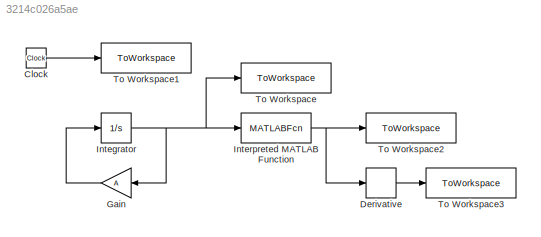
MODEL slx_3214c026a5ae
KIND model
CONFIG AbsTol = auto
CONFIG EnableMultiTasking = on
CONFIG FixedStep = 0.01
CONFIG MaxStep = auto
CONFIG MinStep = auto
CONFIG RelTol = 1e-3
CONFIG SampleTimeConstraint = Unconstrained
CONFIG Solver = ode4
CONFIG SolverName = ode4
CONFIG StartTime = 0.0
CONFIG StopTime = 4
BLOCK [Clock] Clock
BLOCK [Derivative] Derivative
BLOCK [Gain] Gain
  Gain = A
  Multiplication = Matrix(K*u)
BLOCK [Integrator] Integrator
  InitialCondition = x0
  Ports = [1, 1]
BLOCK [MATLABFcn] Interpreted MATLAB Function
  MATLABFcn = P(1,1)*u(1)^2 + 2*P(1,2)*u(1)*u(2) + P(2,2)*u(2)^2
  Ports = [1, 1]
BLOCK [ToWorkspace] To Workspace
  FixptAsFi = on
  MaxDataPoints = inf
  Ports = [1]
  SampleTime = -1
  VariableName = x
BLOCK [ToWorkspace] To Workspace1
  FixptAsFi = on
  MaxDataPoints = inf
  Ports = [1]
  SampleTime = -1
  VariableName = t
BLOCK [ToWorkspace] To Workspace2
  FixptAsFi = on
  MaxDataPoints = inf
  Ports = [1]
  SampleTime = -1
  VariableName = phi
BLOCK [ToWorkspace] To Workspace3
  FixptAsFi = on
  MaxDataPoints = inf
  Ports = [1]
  SampleTime = -1
  VariableName = dphi
LINE Clock:1 -> To Workspace1:1
LINE Derivative:1 -> To Workspace3:1
LINE Gain:1 -> Integrator:1
NET Integrator:1 -> Gain:1, Interpreted MATLAB Function:1, To Workspace:1
NET Interpreted MATLAB Function:1 -> Derivative:1, To Workspace2:1
note: NET lines group one-source signal fan-out (src -> all destinations, sorted); 1:1 wires keep LINE
